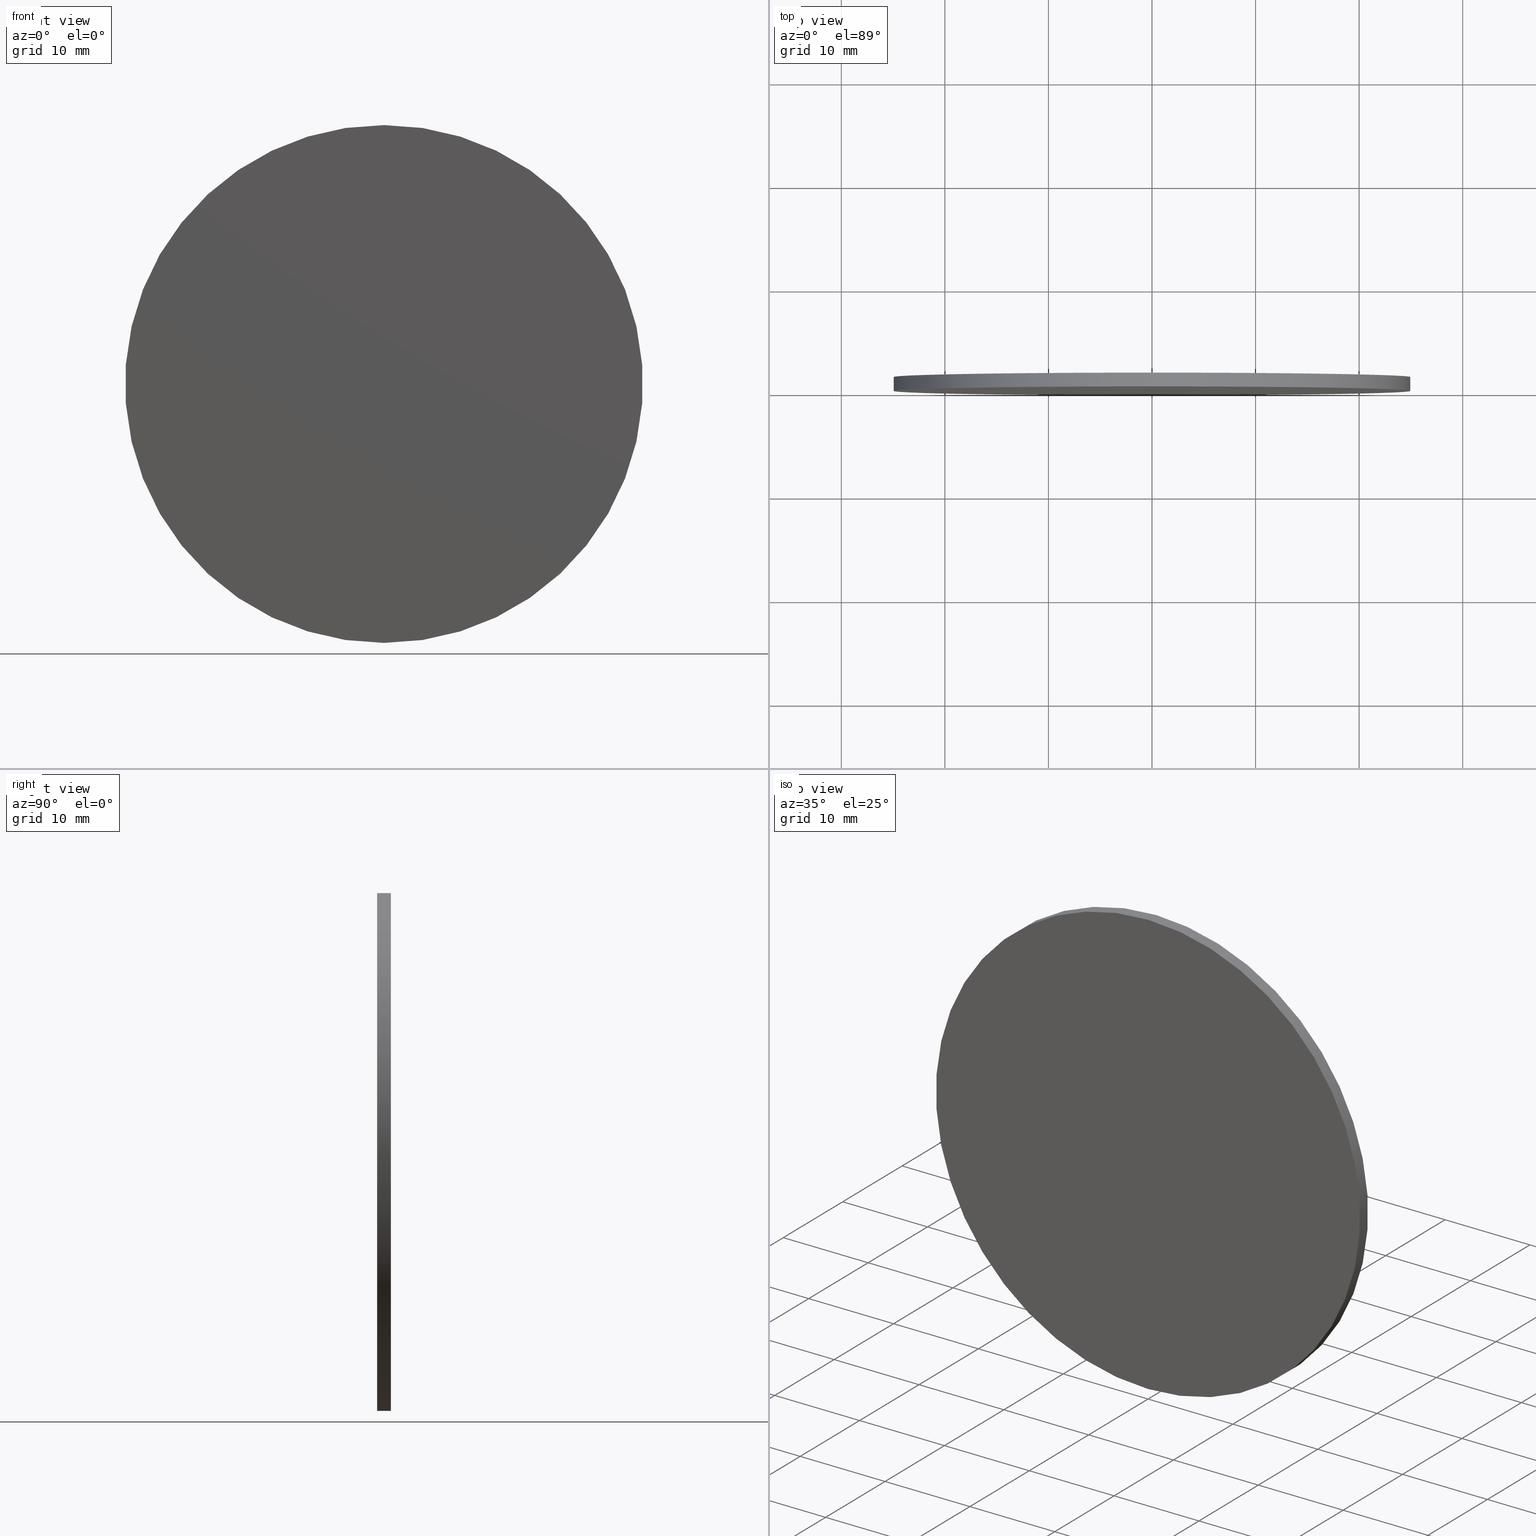
[diagram: canonical four-view strip — front | top / right | iso, engineering-drawing reading convention]
A machine part, canonical four-view strip (front | top / right | iso — engineering-drawing reading convention). The complete STEP part file that produces these views, byte-faithful:
ISO-10303-21;
HEADER;
FILE_DESCRIPTION (( 'STEP AP214' ),
    '1' );
FILE_NAME ('248594.STEP',
    '2019-08-06T05:11:47',
    ( 'user' ),
    ( '΢���й�' ),
    'SwSTEP 2.0',
    'SolidWorks 2016',
    '' );
FILE_SCHEMA (( 'AUTOMOTIVE_DESIGN' ));
ENDSEC;

DATA;
#1 = PRODUCT_CONTEXT ( 'NONE', #55, 'mechanical' ) ;
#2 = STYLED_ITEM ( 'NONE', ( #62 ), #140 ) ;
#3 = AXIS2_PLACEMENT_3D ( 'NONE', #43, #84, #115 ) ;
#4 =( GEOMETRIC_REPRESENTATION_CONTEXT ( 3 ) GLOBAL_UNCERTAINTY_ASSIGNED_CONTEXT ( ( #34 ) ) GLOBAL_UNIT_ASSIGNED_CONTEXT ( ( #86, #111, #102 ) ) REPRESENTATION_CONTEXT ( 'NONE', 'WORKASPACE' ) );
#5 = VERTEX_POINT ( 'NONE', #87 ) ;
#6 = APPLICATION_CONTEXT ( 'automotive_design' ) ;
#7 = FACE_OUTER_BOUND ( 'NONE', #35, .T. ) ;
#8 = DIRECTION ( 'NONE',  ( -0.0000000000000000000, -1.000000000000000000, -0.0000000000000000000 ) ) ;
#9 =( NAMED_UNIT ( * ) SI_UNIT ( $, .STERADIAN. ) SOLID_ANGLE_UNIT ( ) );
#10 = ADVANCED_FACE ( 'NONE', ( #11 ), #75, .T. ) ;
#11 = FACE_OUTER_BOUND ( 'NONE', #39, .T. ) ;
#12 = APPLICATION_PROTOCOL_DEFINITION ( 'draft international standard', 'automotive_design', 1998, #6 ) ;
#13 = PRESENTATION_LAYER_ASSIGNMENT (  '', '', ( #2 ) ) ;
#14 = AXIS2_PLACEMENT_3D ( 'NONE', #135, #74, #134 ) ;
#15 = DIRECTION ( 'NONE',  ( -0.0000000000000000000, -1.000000000000000000, -0.0000000000000000000 ) ) ;
#16 = CARTESIAN_POINT ( 'NONE',  ( 0.0000000000000000000, 1.330000000000000100, 0.0000000000000000000 ) ) ;
#17 = LINE ( 'NONE', #138, #67 ) ;
#18 = PRESENTATION_LAYER_ASSIGNMENT (  '', '', ( #106 ) ) ;
#19 = AXIS2_PLACEMENT_3D ( 'NONE', #110, #38, #113 ) ;
#20 = CYLINDRICAL_SURFACE ( 'NONE', #128, 25.00000000000000000 ) ;
#21 = CARTESIAN_POINT ( 'NONE',  ( 0.0000000000000000000, 1.330000000000000100, 0.0000000000000000000 ) ) ;
#22 = VERTEX_POINT ( 'NONE', #93 ) ;
#23 = DIRECTION ( 'NONE',  ( 0.0000000000000000000, 1.000000000000000000, 0.0000000000000000000 ) ) ;
#24 = DIRECTION ( 'NONE',  ( 0.0000000000000000000, -0.0000000000000000000, 1.000000000000000000 ) ) ;
#25 = DIRECTION ( 'NONE',  ( 0.0000000000000000000, 1.000000000000000000, 0.0000000000000000000 ) ) ;
#26 = CARTESIAN_POINT ( 'NONE',  ( 3.061616997868383000E-015, 1.330000000000000100, 25.00000000000000000 ) ) ;
#27 = EDGE_CURVE ( 'NONE', #56, #5, #52, .T. ) ;
#28 = EDGE_LOOP ( 'NONE', ( #41, #125, #45, #59 ) ) ;
#29 = CARTESIAN_POINT ( 'NONE',  ( 0.0000000000000000000, 0.0000000000000000000, 0.0000000000000000000 ) ) ;
#30 = PRODUCT ( '248594', '248594', '', ( #1 ) ) ;
#31 = FACE_OUTER_BOUND ( 'NONE', #28, .T. ) ;
#32 = DIRECTION ( 'NONE',  ( 0.0000000000000000000, 0.0000000000000000000, -1.000000000000000000 ) ) ;
#33 = DIRECTION ( 'NONE',  ( 0.0000000000000000000, 1.000000000000000000, 0.0000000000000000000 ) ) ;
#34 = UNCERTAINTY_MEASURE_WITH_UNIT (LENGTH_MEASURE( 1.000000000000000100E-005 ), #86, 'distance_accuracy_value', 'NONE');
#35 = EDGE_LOOP ( 'NONE', ( #70, #94 ) ) ;
#36 = FILL_AREA_STYLE_COLOUR ( '', #83 ) ;
#37 = EDGE_LOOP ( 'NONE', ( #104, #60 ) ) ;
#38 = DIRECTION ( 'NONE',  ( -0.0000000000000000000, -1.000000000000000000, -0.0000000000000000000 ) ) ;
#39 = EDGE_LOOP ( 'NONE', ( #123, #116, #81, #50 ) ) ;
#40 = PRODUCT_DEFINITION_SHAPE ( 'NONE', 'NONE',  #108 ) ;
#41 = ORIENTED_EDGE ( 'NONE', *, *, #131, .F. ) ;
#42 = SHAPE_DEFINITION_REPRESENTATION ( #40, #58 ) ;
#43 = CARTESIAN_POINT ( 'NONE',  ( 0.0000000000000000000, 1.330000000000000100, 0.0000000000000000000 ) ) ;
#44 = EDGE_CURVE ( 'NONE', #5, #56, #101, .T. ) ;
#45 = ORIENTED_EDGE ( 'NONE', *, *, #133, .T. ) ;
#46 = DIRECTION ( 'NONE',  ( 0.0000000000000000000, 0.0000000000000000000, 1.000000000000000000 ) ) ;
#47 = FILL_AREA_STYLE ('',( #88 ) ) ;
#48 = SURFACE_SIDE_STYLE ('',( #69 ) ) ;
#49 = DIRECTION ( 'NONE',  ( -0.0000000000000000000, -1.000000000000000000, -0.0000000000000000000 ) ) ;
#50 = ORIENTED_EDGE ( 'NONE', *, *, #133, .F. ) ;
#51 = AXIS2_PLACEMENT_3D ( 'NONE', #64, #25, #53 ) ;
#52 = CIRCLE ( 'NONE', #107, 25.00000000000000000 ) ;
#53 = DIRECTION ( 'NONE',  ( 0.0000000000000000000, -0.0000000000000000000, 1.000000000000000000 ) ) ;
#54 = CARTESIAN_POINT ( 'NONE',  ( 3.061616997868383000E-015, 1.330000000000000100, 25.00000000000000000 ) ) ;
#55 = APPLICATION_CONTEXT ( 'automotive_design' ) ;
#56 = VERTEX_POINT ( 'NONE', #54 ) ;
#57 =( NAMED_UNIT ( * ) PLANE_ANGLE_UNIT ( ) SI_UNIT ( $, .RADIAN. ) );
#58 = ADVANCED_BREP_SHAPE_REPRESENTATION ( '248594', ( #140, #97 ), #99 ) ;
#59 = ORIENTED_EDGE ( 'NONE', *, *, #66, .T. ) ;
#60 = ORIENTED_EDGE ( 'NONE', *, *, #105, .F. ) ;
#61 = PLANE ( 'NONE',  #79 ) ;
#62 = PRESENTATION_STYLE_ASSIGNMENT (( #119 ) ) ;
#63 = VECTOR ( 'NONE', #15, 1000.000000000000000 ) ;
#64 = CARTESIAN_POINT ( 'NONE',  ( 0.0000000000000000000, 1.330000000000000100, 0.0000000000000000000 ) ) ;
#65 = SURFACE_SIDE_STYLE ('',( #124 ) ) ;
#66 = EDGE_CURVE ( 'NONE', #22, #136, #109, .T. ) ;
#67 = VECTOR ( 'NONE', #49, 1000.000000000000000 ) ;
#68 = COLOUR_RGB ( '',1.000000000000000000, 1.000000000000000000, 1.000000000000000000 ) ;
#69 = SURFACE_STYLE_FILL_AREA ( #47 ) ;
#70 = ORIENTED_EDGE ( 'NONE', *, *, #44, .T. ) ;
#71 = FILL_AREA_STYLE ('',( #36 ) ) ;
#72 = DIRECTION ( 'NONE',  ( 0.0000000000000000000, 0.0000000000000000000, 1.000000000000000000 ) ) ;
#73 = UNCERTAINTY_MEASURE_WITH_UNIT (LENGTH_MEASURE( 1.000000000000000100E-005 ), #100, 'distance_accuracy_value', 'NONE');
#74 = DIRECTION ( 'NONE',  ( 0.0000000000000000000, 1.000000000000000000, 0.0000000000000000000 ) ) ;
#75 = CYLINDRICAL_SURFACE ( 'NONE', #19, 25.00000000000000000 ) ;
#76 = PLANE ( 'NONE',  #51 ) ;
#77 =( LENGTH_UNIT ( ) NAMED_UNIT ( * ) SI_UNIT ( .MILLI., .METRE. ) );
#78 = ADVANCED_FACE ( 'NONE', ( #31 ), #20, .T. ) ;
#79 = AXIS2_PLACEMENT_3D ( 'NONE', #98, #23, #24 ) ;
#80 = PRODUCT_RELATED_PRODUCT_CATEGORY ( 'part', '', ( #30 ) ) ;
#81 = ORIENTED_EDGE ( 'NONE', *, *, #105, .T. ) ;
#82 = CARTESIAN_POINT ( 'NONE',  ( 0.0000000000000000000, 0.0000000000000000000, 0.0000000000000000000 ) ) ;
#83 = COLOUR_RGB ( '',1.000000000000000000, 1.000000000000000000, 1.000000000000000000 ) ;
#84 = DIRECTION ( 'NONE',  ( 0.0000000000000000000, 1.000000000000000000, 0.0000000000000000000 ) ) ;
#85 = MECHANICAL_DESIGN_GEOMETRIC_PRESENTATION_REPRESENTATION (  '', ( #106 ), #4 ) ;
#86 =( LENGTH_UNIT ( ) NAMED_UNIT ( * ) SI_UNIT ( .MILLI., .METRE. ) );
#87 = CARTESIAN_POINT ( 'NONE',  ( 0.0000000000000000000, 1.330000000000000100, -25.00000000000000000 ) ) ;
#88 = FILL_AREA_STYLE_COLOUR ( '', #68 ) ;
#89 = FACE_OUTER_BOUND ( 'NONE', #37, .T. ) ;
#90 = SURFACE_STYLE_USAGE ( .BOTH. , #48 ) ;
#91 = CIRCLE ( 'NONE', #14, 25.00000000000000000 ) ;
#92 = PRESENTATION_STYLE_ASSIGNMENT (( #90 ) ) ;
#93 = CARTESIAN_POINT ( 'NONE',  ( 0.0000000000000000000, 0.0000000000000000000, -25.00000000000000000 ) ) ;
#94 = ORIENTED_EDGE ( 'NONE', *, *, #27, .T. ) ;
#95 = ADVANCED_FACE ( 'NONE', ( #7 ), #76, .T. ) ;
#96 = DIRECTION ( 'NONE',  ( 0.0000000000000000000, 1.000000000000000000, 0.0000000000000000000 ) ) ;
#97 = AXIS2_PLACEMENT_3D ( 'NONE', #82, #72, #126 ) ;
#98 = CARTESIAN_POINT ( 'NONE',  ( 0.0000000000000000000, 0.0000000000000000000, 0.0000000000000000000 ) ) ;
#99 =( GEOMETRIC_REPRESENTATION_CONTEXT ( 3 ) GLOBAL_UNCERTAINTY_ASSIGNED_CONTEXT ( ( #132 ) ) GLOBAL_UNIT_ASSIGNED_CONTEXT ( ( #77, #57, #9 ) ) REPRESENTATION_CONTEXT ( 'NONE', 'WORKASPACE' ) );
#100 =( LENGTH_UNIT ( ) NAMED_UNIT ( * ) SI_UNIT ( .MILLI., .METRE. ) );
#101 = CIRCLE ( 'NONE', #3, 25.00000000000000000 ) ;
#102 =( NAMED_UNIT ( * ) SI_UNIT ( $, .STERADIAN. ) SOLID_ANGLE_UNIT ( ) );
#103 = CARTESIAN_POINT ( 'NONE',  ( 3.061616997868383000E-015, 0.0000000000000000000, 25.00000000000000000 ) ) ;
#104 = ORIENTED_EDGE ( 'NONE', *, *, #66, .F. ) ;
#105 = EDGE_CURVE ( 'NONE', #136, #22, #91, .T. ) ;
#106 = STYLED_ITEM ( 'NONE', ( #92 ), #58 ) ;
#107 = AXIS2_PLACEMENT_3D ( 'NONE', #21, #96, #112 ) ;
#108 = PRODUCT_DEFINITION ( 'δ֪', '', #122, #117 ) ;
#109 = CIRCLE ( 'NONE', #121, 25.00000000000000000 ) ;
#110 = CARTESIAN_POINT ( 'NONE',  ( 0.0000000000000000000, 1.330000000000000100, 0.0000000000000000000 ) ) ;
#111 =( NAMED_UNIT ( * ) PLANE_ANGLE_UNIT ( ) SI_UNIT ( $, .RADIAN. ) );
#112 = DIRECTION ( 'NONE',  ( 0.0000000000000000000, 0.0000000000000000000, 1.000000000000000000 ) ) ;
#113 = DIRECTION ( 'NONE',  ( 0.0000000000000000000, 0.0000000000000000000, -1.000000000000000000 ) ) ;
#114 =( NAMED_UNIT ( * ) SI_UNIT ( $, .STERADIAN. ) SOLID_ANGLE_UNIT ( ) );
#115 = DIRECTION ( 'NONE',  ( 0.0000000000000000000, 0.0000000000000000000, 1.000000000000000000 ) ) ;
#116 = ORIENTED_EDGE ( 'NONE', *, *, #131, .T. ) ;
#117 = PRODUCT_DEFINITION_CONTEXT ( 'detailed design', #6, 'design' ) ;
#118 = ADVANCED_FACE ( 'NONE', ( #89 ), #61, .F. ) ;
#119 = SURFACE_STYLE_USAGE ( .BOTH. , #65 ) ;
#120 = MECHANICAL_DESIGN_GEOMETRIC_PRESENTATION_REPRESENTATION (  '', ( #2 ), #127 ) ;
#121 = AXIS2_PLACEMENT_3D ( 'NONE', #29, #33, #46 ) ;
#122 = PRODUCT_DEFINITION_FORMATION_WITH_SPECIFIED_SOURCE ( '�κ�', '', #30, .NOT_KNOWN. ) ;
#123 = ORIENTED_EDGE ( 'NONE', *, *, #27, .F. ) ;
#124 = SURFACE_STYLE_FILL_AREA ( #71 ) ;
#125 = ORIENTED_EDGE ( 'NONE', *, *, #44, .F. ) ;
#126 = DIRECTION ( 'NONE',  ( 1.000000000000000000, 0.0000000000000000000, 0.0000000000000000000 ) ) ;
#127 =( GEOMETRIC_REPRESENTATION_CONTEXT ( 3 ) GLOBAL_UNCERTAINTY_ASSIGNED_CONTEXT ( ( #73 ) ) GLOBAL_UNIT_ASSIGNED_CONTEXT ( ( #100, #130, #114 ) ) REPRESENTATION_CONTEXT ( 'NONE', 'WORKASPACE' ) );
#128 = AXIS2_PLACEMENT_3D ( 'NONE', #16, #8, #32 ) ;
#129 = LINE ( 'NONE', #26, #63 ) ;
#130 =( NAMED_UNIT ( * ) PLANE_ANGLE_UNIT ( ) SI_UNIT ( $, .RADIAN. ) );
#131 = EDGE_CURVE ( 'NONE', #56, #136, #129, .T. ) ;
#132 = UNCERTAINTY_MEASURE_WITH_UNIT (LENGTH_MEASURE( 1.000000000000000100E-005 ), #77, 'distance_accuracy_value', 'NONE');
#133 = EDGE_CURVE ( 'NONE', #5, #22, #17, .T. ) ;
#134 = DIRECTION ( 'NONE',  ( 0.0000000000000000000, 0.0000000000000000000, 1.000000000000000000 ) ) ;
#135 = CARTESIAN_POINT ( 'NONE',  ( 0.0000000000000000000, 0.0000000000000000000, 0.0000000000000000000 ) ) ;
#136 = VERTEX_POINT ( 'NONE', #103 ) ;
#137 = APPLICATION_PROTOCOL_DEFINITION ( 'draft international standard', 'automotive_design', 1998, #55 ) ;
#138 = CARTESIAN_POINT ( 'NONE',  ( 0.0000000000000000000, 1.330000000000000100, -25.00000000000000000 ) ) ;
#139 = CLOSED_SHELL ( 'NONE', ( #10, #78, #95, #118 ) ) ;
#140 = MANIFOLD_SOLID_BREP ( '͹̨-����1', #139 ) ;
ENDSEC;
END-ISO-10303-21;
